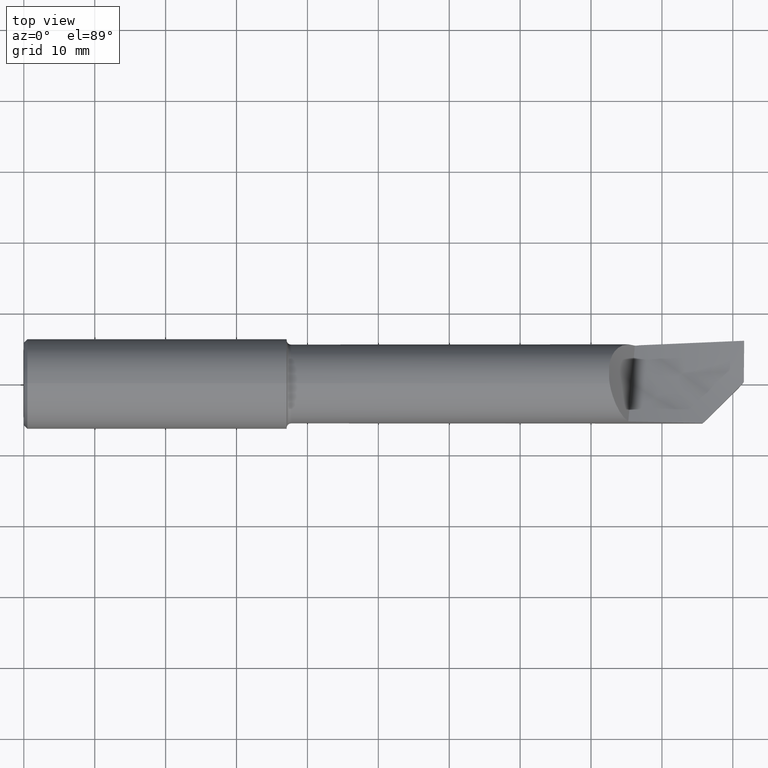
[diagram: clean part render]
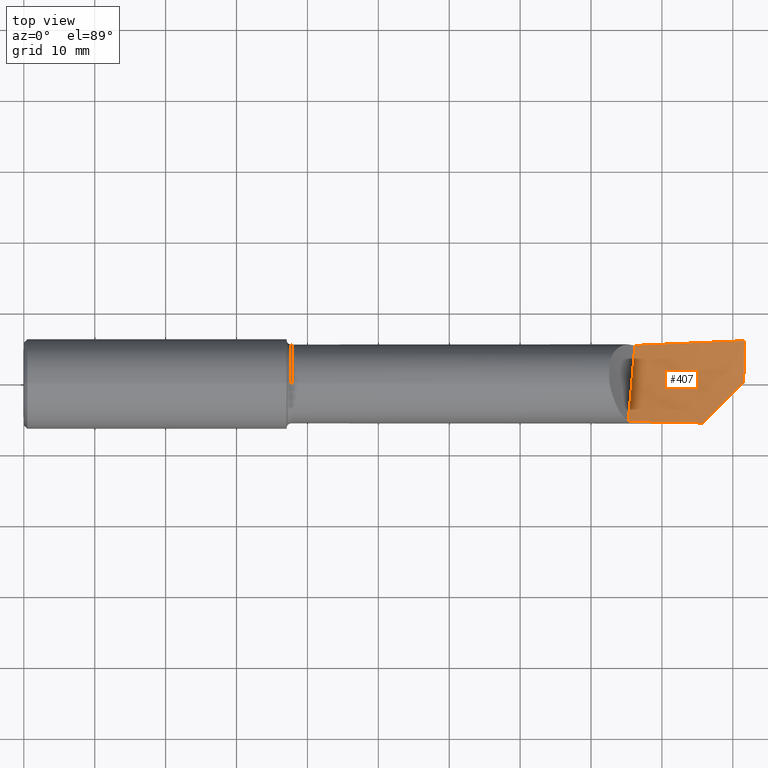
[diagram: same view with one face highlighted and labeled with its STEP entity id]
A machine part, top view. The second image highlights one B-rep face of the part: STEP entity #407.
In plain terms, the highlighted face is a freeform B-spline surface patch.
Its self-contained STEP definition (entity closure, byte-faithful):
#49 = CARTESIAN_POINT ( 'NONE',  ( 3.392944745247168825, 0.2140968924730455025, -0.05062134562993374914 ) ) ;
#56 = EDGE_CURVE ( 'NONE', #745, #512, #674, .T. ) ;
#72 = ORIENTED_EDGE ( 'NONE', *, *, #540, .F. ) ;
#78 = CARTESIAN_POINT ( 'NONE',  ( 3.679487179487179738, -0.1433107432254709379, 0.01290318863713321371 ) ) ;
#82 = CARTESIAN_POINT ( 'NONE',  ( 3.038461538461540101, 0.4058074895221152611, -0.1396724983455376601 ) ) ;
#94 = CARTESIAN_POINT ( 'NONE',  ( 4.000000000000000000, 0.2402499999999999636, 0.000000000000000000 ) ) ;
#104 = CARTESIAN_POINT ( 'NONE',  ( 3.418486830548872923, 0.2160475044874685668, -0.04882782362294704054 ) ) ;
#115 = CARTESIAN_POINT ( 'NONE',  ( 3.356559098504054095, -0.2088777642239234011, 0.06906576061805759503 ) ) ;
#122 = ORIENTED_EDGE ( 'NONE', *, *, #458, .F. ) ;
#136 = CARTESIAN_POINT ( 'NONE',  ( 4.000000000000000000, 0.4258375057284731757, 0.01320825401576949422 ) ) ;
#143 = CARTESIAN_POINT ( 'NONE',  ( 3.998938641188131360, 0.1633380998407393259, -0.003177467661418243317 ) ) ;
#148 = CARTESIAN_POINT ( 'NONE',  ( 3.998256711176775724, 0.08645143747529215883, -0.003266647090703820016 ) ) ;
#157 = CARTESIAN_POINT ( 'NONE',  ( 3.771270714435558613, -0.2170814383730695907, 0.03571623039850645859 ) ) ;
#166 = CARTESIAN_POINT ( 'NONE',  ( 3.368992473848769098, -0.07181561011661133365, 0.01702505518877553414 ) ) ;
#173 = EDGE_CURVE ( 'NONE', #525, #300, #685, .T. ) ;
#174 = CARTESIAN_POINT ( 'NONE',  ( 3.997941307501973185, 0.009589154693344590849, -0.0003725554249012129554 ) ) ;
#190 = CARTESIAN_POINT ( 'NONE',  ( 2.717948717948720283, -0.1284787043503996806, 0.06242489022452848979 ) ) ;
#210 = B_SPLINE_CURVE_WITH_KNOTS ( 'NONE', 3,
 ( #49, #691, #166, #115 ),
 .UNSPECIFIED., .F., .F.,
 ( 4, 4 ),
 ( 0.000000000000000000, 1.000000000000000000 ),
 .UNSPECIFIED. ) ;
#222 = CARTESIAN_POINT ( 'NONE',  ( 3.564429700643781285, -0.2143015012764733218, 0.05261254719292926540 ) ) ;
#231 = ORIENTED_EDGE ( 'NONE', *, *, #328, .F. ) ;
#233 = EDGE_CURVE ( 'NONE', #565, #594, #654, .T. ) ;
#246 = CARTESIAN_POINT ( 'NONE',  ( 3.846075425691744876, -0.1422767271168803027, 0.01425986872581132096 ) ) ;
#254 = CARTESIAN_POINT ( 'NONE',  ( 3.038461538461539657, -0.1360584583238938217, 0.04682475114047649628 ) ) ;
#270 = ORIENTED_EDGE ( 'NONE', *, *, #56, .T. ) ;
#272 = CARTESIAN_POINT ( 'NONE',  ( 3.401469481609321388, 0.2142601318164513158, -0.04993094446185703666 ) ) ;
#286 = B_SPLINE_CURVE_WITH_KNOTS ( 'NONE', 3,
 ( #577, #681, #632, #586 ),
 .UNSPECIFIED., .F., .F.,
 ( 4, 4 ),
 ( 0.000000000000000000, 0.0002197412204929081341 ),
 .UNSPECIFIED. ) ;
#289 = CARTESIAN_POINT ( 'NONE',  ( 3.771270714435558613, -0.2170814383730695907, 0.03571623039850645859 ) ) ;
#300 = VERTEX_POINT ( 'NONE', #377 ) ;
#305 = CARTESIAN_POINT ( 'NONE',  ( 3.679487179487180626, 0.4274412781259713245, -0.03849778046020245481 ) ) ;
#310 = CARTESIAN_POINT ( 'NONE',  ( 2.717948717948720283, 0.1185125768182977157, -0.08009619267214614091 ) ) ;
#315 = CARTESIAN_POINT ( 'NONE',  ( 4.000000000000000888, -0.1427725359348056000, -0.004432535825742341291 ) ) ;
#328 = EDGE_CURVE ( 'NONE', #456, #565, #683, .T. ) ;
#344 = EDGE_LOOP ( 'NONE', ( #122, #270, #72, #350, #416, #583, #231 ) ) ;
#350 = ORIENTED_EDGE ( 'NONE', *, *, #173, .F. ) ;
#353 = CARTESIAN_POINT ( 'NONE',  ( 3.771270714435558613, -0.2170814383730695907, 0.03571623039850645859 ) ) ;
#371 = CARTESIAN_POINT ( 'NONE',  ( 3.997941307501973185, 0.009589154693344590849, -0.0003725554249012129554 ) ) ;
#377 = CARTESIAN_POINT ( 'NONE',  ( 3.410000000000000142, 0.2144189151190963039, -0.04923950486296325285 ) ) ;
#400 = CARTESIAN_POINT ( 'NONE',  ( 2.717948717948720283, -0.3527962921881071523, 0.2384890030643342096 ) ) ;
#407 = ADVANCED_FACE ( 'NONE', ( #699 ), #554, .T. ) ;
#409 = B_SPLINE_CURVE_WITH_KNOTS ( 'NONE', 3,
 ( #445, #143, #148, #371 ),
 .UNSPECIFIED., .F., .F.,
 ( 4, 4 ),
 ( 2.402691837942656048E-16, 0.005858684638792624119 ),
 .UNSPECIFIED. ) ;
#416 = ORIENTED_EDGE ( 'NONE', *, *, #562, .T. ) ;
#427 = CARTESIAN_POINT ( 'NONE',  ( 3.038461538461539657, 0.1282380153811019941, -0.06570616055808793654 ) ) ;
#428 = CARTESIAN_POINT ( 'NONE',  ( 3.806231657992948492, 0.2339654237526749003, -0.01788766252031811013 ) ) ;
#445 = CARTESIAN_POINT ( 'NONE',  ( 4.000000000000000000, 0.2402499999999999636, 0.000000000000000000 ) ) ;
#447 = CARTESIAN_POINT ( 'NONE',  ( 3.358974358974360808, -0.2089406661879938953, 0.06887523512059523512 ) ) ;
#454 = CARTESIAN_POINT ( 'NONE',  ( 3.357725844419106043, -0.2089080893730914656, 0.06897406050240462161 ) ) ;
#456 = VERTEX_POINT ( 'NONE', #715 ) ;
#458 = EDGE_CURVE ( 'NONE', #745, #456, #409, .T. ) ;
#474 = CARTESIAN_POINT ( 'NONE',  ( 3.921631811082993746, -0.06672034172563433285, 0.002224270572586397546 ) ) ;
#479 = CARTESIAN_POINT ( 'NONE',  ( 3.038461538461540101, -0.3817540999168784754, 0.1956517775933941383 ) ) ;
#489 = CARTESIAN_POINT ( 'NONE',  ( 3.679487179487179738, 0.1402361651789809094, -0.03310749311051140731 ) ) ;
#510 = CARTESIAN_POINT ( 'NONE',  ( 3.356559098504054095, -0.2088777642239234011, 0.06906576061805759503 ) ) ;
#512 = VERTEX_POINT ( 'NONE', #104 ) ;
#525 = VERTEX_POINT ( 'NONE', #756 ) ;
#538 = CARTESIAN_POINT ( 'NONE',  ( 3.679487179487180626, -0.4174835547069452035, 0.09860675650306138795 ) ) ;
#540 = EDGE_CURVE ( 'NONE', #300, #512, #286, .T. ) ;
#554 =( BOUNDED_SURFACE ( )  B_SPLINE_SURFACE ( 3, 2, ( 
 ( #593, #538, #644, #479, #400 ),
 ( #315, #78, #724, #254, #190 ),
 ( #604, #489, #619, #427, #310 ),
 ( #136, #305, #651, #82, #599 ) ),
 .UNSPECIFIED., .F., .F., .F. ) 
 B_SPLINE_SURFACE_WITH_KNOTS ( ( 4, 4 ),
 ( 3, 2, 3 ),
 ( 0.000000000000000000, 1.000000000000000000 ),
 ( 0.000000000000000000, 0.5000000000000000000, 1.000000000000000000 ),
 .UNSPECIFIED. ) 
 GEOMETRIC_REPRESENTATION_ITEM ( )  RATIONAL_B_SPLINE_SURFACE ( (
 ( 1.000000000000000000, 0.9927088740980539727, 1.000000000000000000, 0.9927088740980539727, 1.000000000000000000),
 ( 0.9932804858608129672, 0.9860383527824556626, 0.9932804858608129672, 0.9860383527824556626, 0.9932804858608129672),
 ( 0.9932804858608129672, 0.9860383527824556626, 0.9932804858608129672, 0.9860383527824556626, 0.9932804858608129672),
 ( 1.000000000000000000, 0.9927088740980539727, 1.000000000000000000, 0.9927088740980539727, 1.000000000000000000) ) ) 
 REPRESENTATION_ITEM ( '' )  SURFACE ( )  );
#561 = CARTESIAN_POINT ( 'NONE',  ( 3.356559098504054095, -0.2088777642239234011, 0.06906576061805759503 ) ) ;
#562 = EDGE_CURVE ( 'NONE', #525, #594, #210, .T. ) ;
#565 = VERTEX_POINT ( 'NONE', #289 ) ;
#577 = CARTESIAN_POINT ( 'NONE',  ( 3.410000000000000142, 0.2144189151190963039, -0.04923950486296325285 ) ) ;
#583 = ORIENTED_EDGE ( 'NONE', *, *, #233, .F. ) ;
#586 = CARTESIAN_POINT ( 'NONE',  ( 3.418486830548872923, 0.2160475044874685668, -0.04882782362294704054 ) ) ;
#593 = CARTESIAN_POINT ( 'NONE',  ( 4.000000000000000000, -0.4232169687476833864, 0.04721891282440422027 ) ) ;
#594 = VERTEX_POINT ( 'NONE', #510 ) ;
#599 = CARTESIAN_POINT ( 'NONE',  ( 2.717948717948720283, 0.3831985670997781201, -0.1862012283307211968 ) ) ;
#604 = CARTESIAN_POINT ( 'NONE',  ( 4.000000000000000888, 0.1421602319866792363, -0.01584611580735217559 ) ) ;
#612 = CARTESIAN_POINT ( 'NONE',  ( 3.612381827555388281, 0.2257843348541543338, -0.03415235492858050698 ) ) ;
#619 = CARTESIAN_POINT ( 'NONE',  ( 3.358974358974360364, 0.1342370902800414656, -0.04940682683429966499 ) ) ;
#632 = CARTESIAN_POINT ( 'NONE',  ( 3.415657971079502975, 0.2155047129925778404, -0.04896678893848475933 ) ) ;
#644 = CARTESIAN_POINT ( 'NONE',  ( 3.358974358974360364, -0.3996188273119117840, 0.1471292670482277631 ) ) ;
#651 = CARTESIAN_POINT ( 'NONE',  ( 3.358974358974360364, 0.4166243838240432651, -0.08908513940287006438 ) ) ;
#654 =( BOUNDED_CURVE ( )  B_SPLINE_CURVE ( 2, ( #157, #222, #447, #454, #561 ),
 .UNSPECIFIED., .F., .T. ) 
 B_SPLINE_CURVE_WITH_KNOTS ( ( 3, 2, 3 ),
 ( 0.1786485734947634574, 0.5000000000000000000, 0.5019619316750533189 ),
 .UNSPECIFIED. ) 
 CURVE ( )  GEOMETRIC_REPRESENTATION_ITEM ( )  RATIONAL_B_SPLINE_CURVE ( ( 0.9929648280793841320, 0.9916323561610862480, 0.9963010501997406898, 0.9962725466426998189, 0.9962442667737845259 ) ) 
 REPRESENTATION_ITEM ( '' )  );
#666 = CARTESIAN_POINT ( 'NONE',  ( 3.418486830548872923, 0.2160475044874685668, -0.04882782362294704054 ) ) ;
#674 = B_SPLINE_CURVE_WITH_KNOTS ( 'NONE', 3,
 ( #94, #428, #612, #666 ),
 .UNSPECIFIED., .F., .F.,
 ( 4, 4 ),
 ( 1.118845850891403391E-19, 0.01483563987091337383 ),
 .UNSPECIFIED. ) ;
#679 = CARTESIAN_POINT ( 'NONE',  ( 3.392944745247168825, 0.2140968924730455025, -0.05062134562993374914 ) ) ;
#681 = CARTESIAN_POINT ( 'NONE',  ( 3.412829028078359972, 0.2149618471159616129, -0.04910401580184046988 ) ) ;
#682 = CARTESIAN_POINT ( 'NONE',  ( 3.410000000000000142, 0.2144189151190963039, -0.04923950486296325285 ) ) ;
#683 = B_SPLINE_CURVE_WITH_KNOTS ( 'NONE', 3,
 ( #174, #474, #246, #353 ),
 .UNSPECIFIED., .F., .F.,
 ( 4, 4 ),
 ( 7.367693421369182901E-05, 0.008267352743947879376 ),
 .UNSPECIFIED. ) ;
#685 =( BOUNDED_CURVE ( )  B_SPLINE_CURVE ( 2, ( #679, #272, #682 ),
 .UNSPECIFIED., .F., .T. ) 
 B_SPLINE_CURVE_WITH_KNOTS ( ( 3, 3 ),
 ( 0.5266614230579076406, 0.5400257304258027080 ),
 .UNSPECIFIED. ) 
 CURVE ( )  GEOMETRIC_REPRESENTATION_ITEM ( )  RATIONAL_B_SPLINE_CURVE ( ( 0.9955652346528232055, 0.9953917806560830250, 0.9952287059344252507 ) ) 
 REPRESENTATION_ITEM ( '' )  );
#691 = CARTESIAN_POINT ( 'NONE',  ( 3.380960247964670540, 0.07009182744065012294, -0.02311703390389480833 ) ) ;
#699 = FACE_OUTER_BOUND ( 'NONE', #344, .T. ) ;
#715 = CARTESIAN_POINT ( 'NONE',  ( 3.997941307501973185, 0.009589154693344590849, -0.0003725554249012129554 ) ) ;
#717 = CARTESIAN_POINT ( 'NONE',  ( 4.000000000000000000, 0.2402499999999999636, 0.000000000000000000 ) ) ;
#724 = CARTESIAN_POINT ( 'NONE',  ( 3.358974358974360364, -0.1396846007746824214, 0.02986396988880485326 ) ) ;
#745 = VERTEX_POINT ( 'NONE', #717 ) ;
#756 = CARTESIAN_POINT ( 'NONE',  ( 3.392944745247168825, 0.2140968924730455025, -0.05062134562993374914 ) ) ;